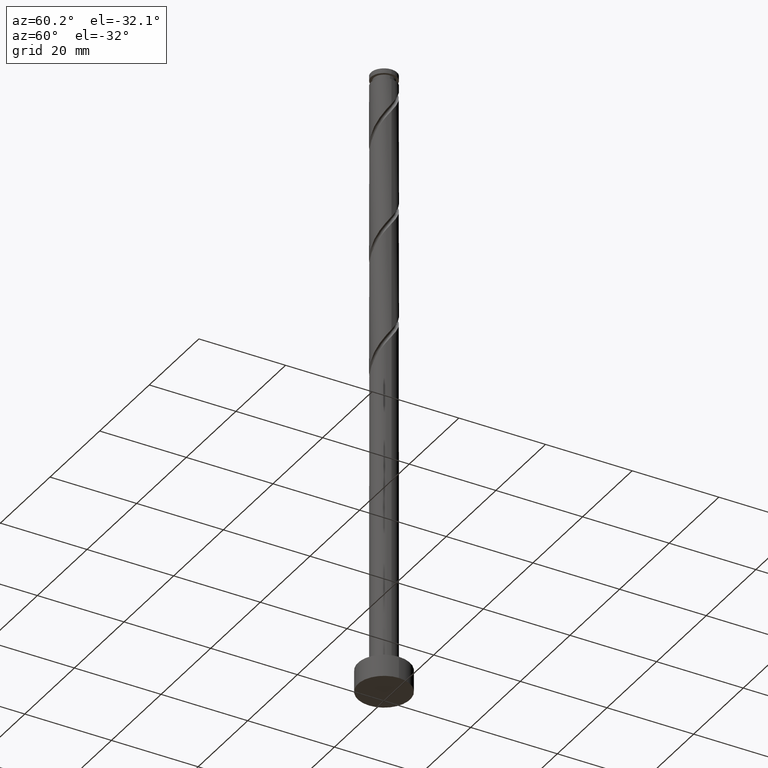
[diagram: clean part render]
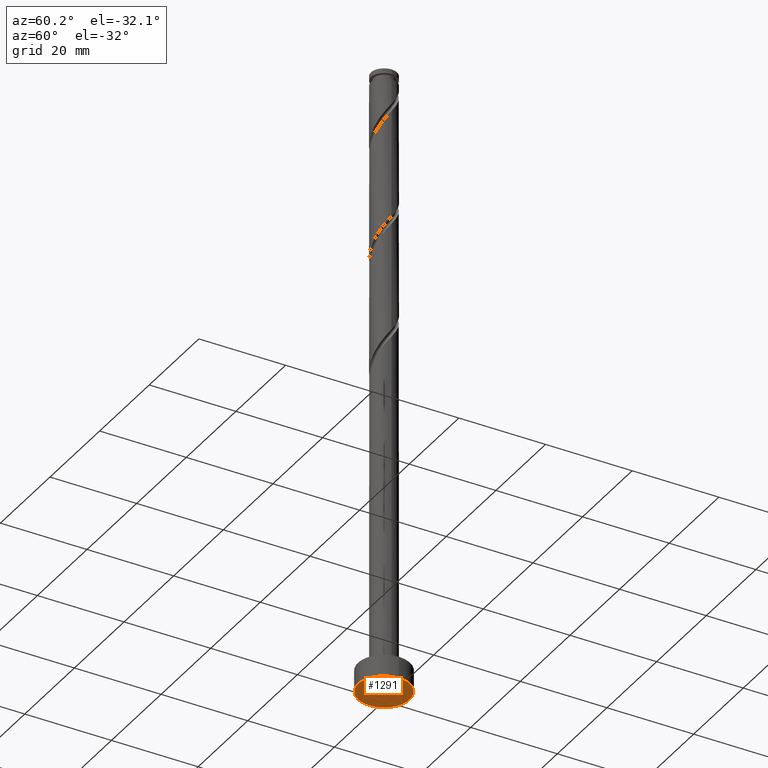
[diagram: same view with one face highlighted and labeled with its STEP entity id]
A machine part, auxiliary view. The second image highlights one B-rep face of the part: STEP entity #1291.
In plain terms, the highlighted planar face has unit normal (0, 0, 1).
Its self-contained STEP definition (entity closure, byte-faithful):
#129 = CIRCLE ( 'NONE', #186, 6.000000000000000888 ) ;
#186 = AXIS2_PLACEMENT_3D ( 'NONE', #845, #220, #469 ) ;
#220 = DIRECTION ( 'NONE',  ( 0.000000000000000000, 0.000000000000000000, 1.000000000000000000 ) ) ;
#242 = VERTEX_POINT ( 'NONE', #740 ) ;
#318 = DIRECTION ( 'NONE',  ( 1.000000000000000000, 0.000000000000000000, -0.000000000000000000 ) ) ;
#366 = VERTEX_POINT ( 'NONE', #1469 ) ;
#423 = DIRECTION ( 'NONE',  ( 1.000000000000000000, 0.000000000000000000, 0.000000000000000000 ) ) ;
#469 = DIRECTION ( 'NONE',  ( 1.000000000000000000, 0.000000000000000000, 0.000000000000000000 ) ) ;
#506 = ORIENTED_EDGE ( 'NONE', *, *, #1212, .F. ) ;
#601 = DIRECTION ( 'NONE',  ( 0.000000000000000000, 0.000000000000000000, 1.000000000000000000 ) ) ;
#618 = PLANE ( 'NONE',  #1263 ) ;
#736 = CARTESIAN_POINT ( 'NONE',  ( 0.000000000000000000, 0.000000000000000000, 0.000000000000000000 ) ) ;
#740 = CARTESIAN_POINT ( 'NONE',  ( -6.000000000000000888, 0.000000000000000000, 0.000000000000000000 ) ) ;
#824 = DIRECTION ( 'NONE',  ( 0.000000000000000000, 0.000000000000000000, 1.000000000000000000 ) ) ;
#845 = CARTESIAN_POINT ( 'NONE',  ( 0.000000000000000000, 0.000000000000000000, 0.000000000000000000 ) ) ;
#865 = FACE_OUTER_BOUND ( 'NONE', #1121, .T. ) ;
#881 = ORIENTED_EDGE ( 'NONE', *, *, #1082, .F. ) ;
#1072 = CARTESIAN_POINT ( 'NONE',  ( 0.000000000000000000, 0.000000000000000000, 0.000000000000000000 ) ) ;
#1082 = EDGE_CURVE ( 'NONE', #366, #242, #1158, .T. ) ;
#1121 = EDGE_LOOP ( 'NONE', ( #506, #881 ) ) ;
#1158 = CIRCLE ( 'NONE', #1464, 6.000000000000000888 ) ;
#1212 = EDGE_CURVE ( 'NONE', #242, #366, #129, .T. ) ;
#1263 = AXIS2_PLACEMENT_3D ( 'NONE', #736, #601, #318 ) ;
#1291 = ADVANCED_FACE ( 'NONE', ( #865 ), #618, .F. ) ;
#1464 = AXIS2_PLACEMENT_3D ( 'NONE', #1072, #824, #423 ) ;
#1469 = CARTESIAN_POINT ( 'NONE',  ( 6.000000000000000888, 7.347880794884120722E-16, 0.000000000000000000 ) ) ;